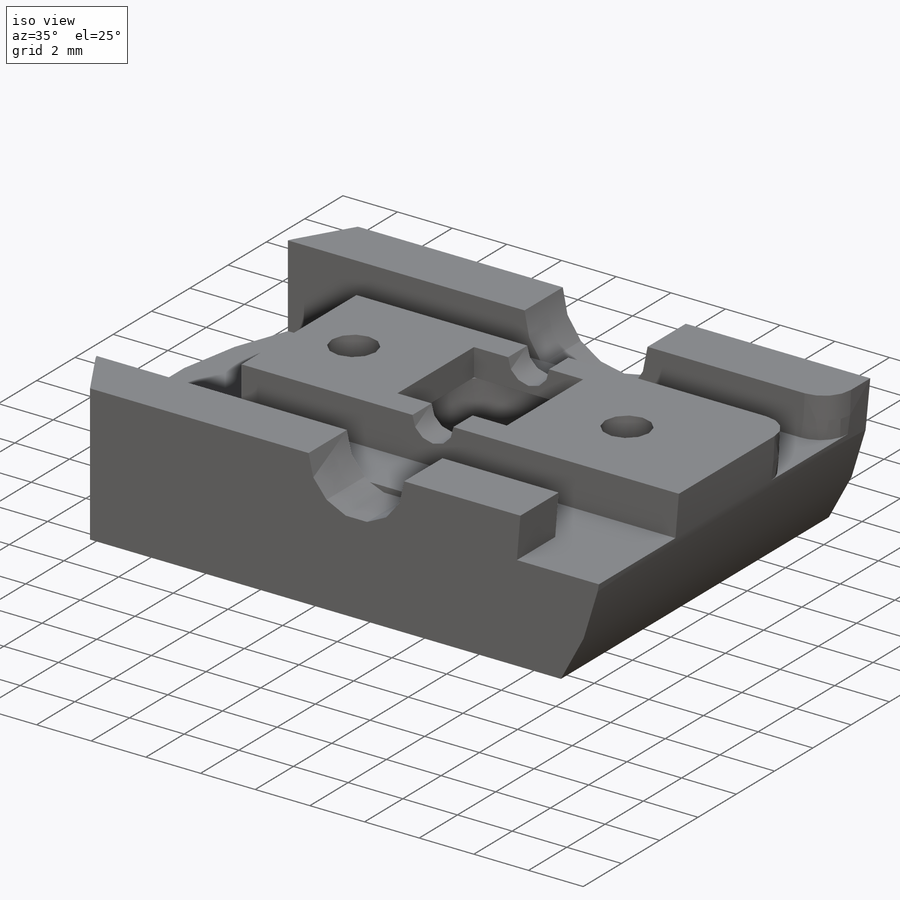
[diagram: iso view]
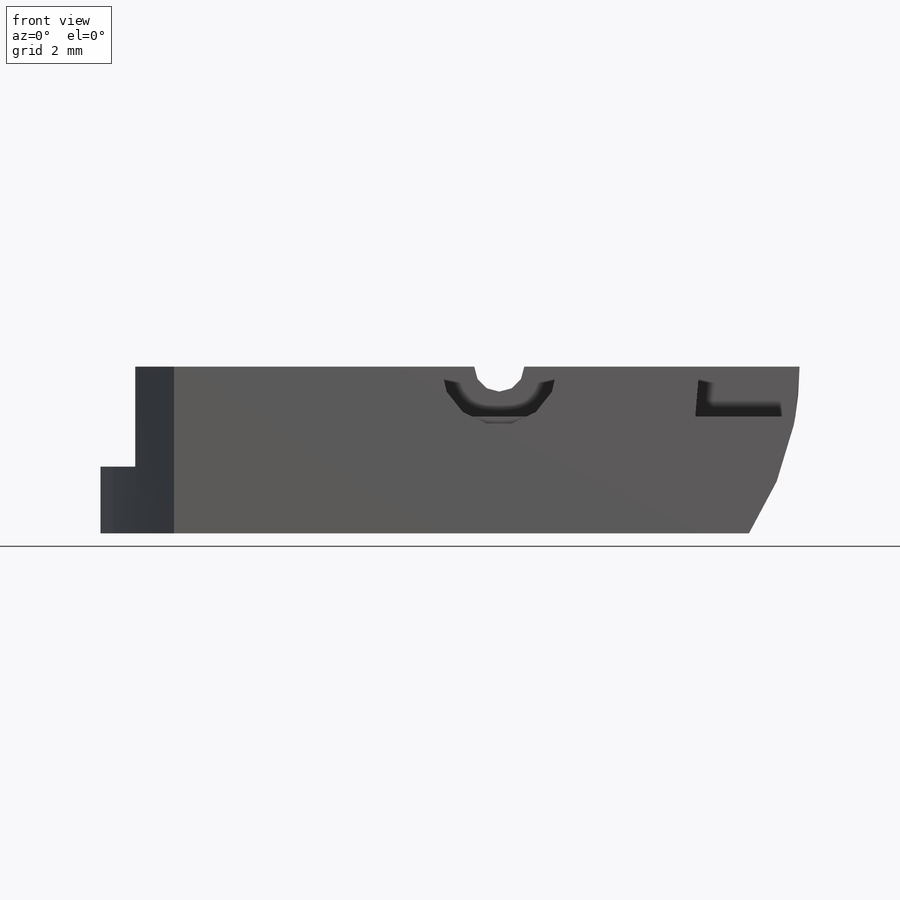
[diagram: front view]
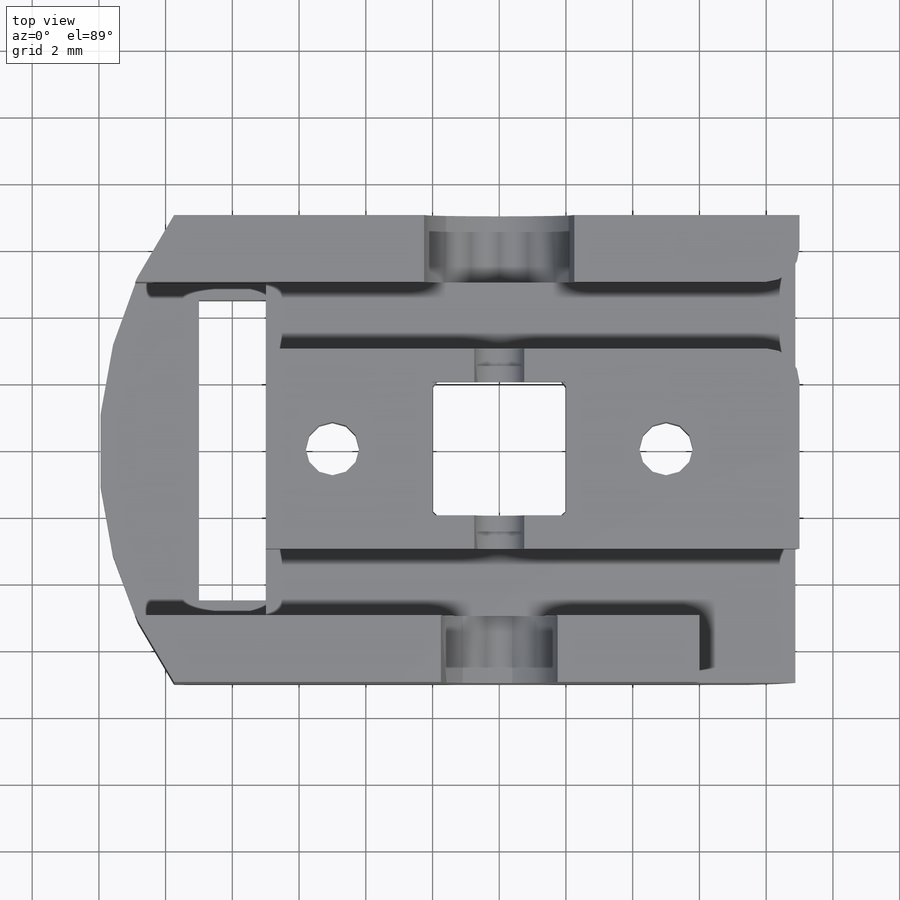
[diagram: top view]
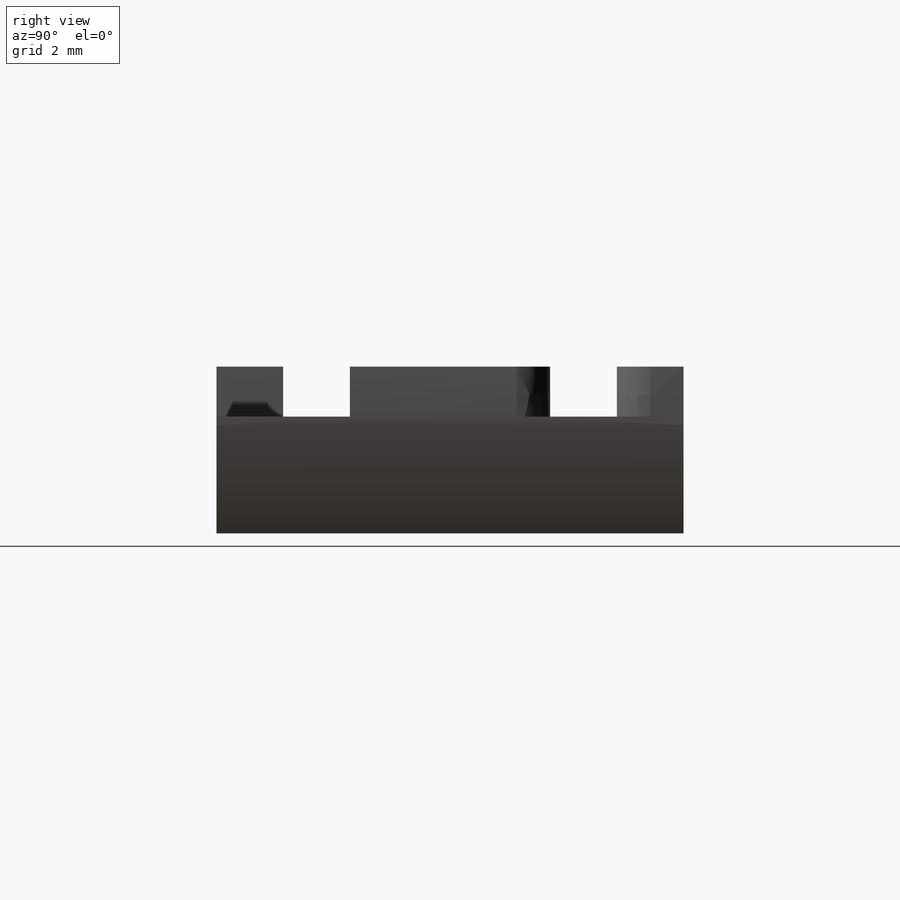
[diagram: right view]
SOLIDWORKS PART (.sldprt)
format: sldprt  version: not decoded by parser v0  size: 419,840 bytes
history: native  units: mm
features: sketch x16, cut_extrude x15, fillet x2, material x1, extrude x1 (+16 scaffold rows collapsed; 3 parser-record rows omitted)
feature tree (54):
  scaffold x16  (default folders/planes/origin — collapsed)
  material  "Material <not specified>"
  parser-record x3  (decoder bookkeeping rows leaked as tree rows — omitted from the tree; the rows remain in map.json)
  sketch  "Sketch1"  dims[c1.D1=22.0mm c1.D2=22.0mm c2.D1=7.0mm]
  extrude  "Boss-Extrude1"  Depth=10mm
  sketch  "Sketch4"  dims[D1=~2.289557mm]
  cut_extrude  "Cut-Extrude3"  [1 undecoded]
  sketch  "Sketch7"  dims[D1=3.5mm]
  cut_extrude  "Cut-Extrude6"  Depth=2mm
  sketch  "Sketch21"  dims[D1=3.5mm]
  cut_extrude  "Cut-Extrude14"  Depth=2mm
  sketch  "Sketch8"  dims[D1=~4.190547mm]
  cut_extrude  "Cut-Extrude7"  Depth=2mm
  sketch  "Sketch10"  dims[D1=2.75mm]
  cut_extrude  "Cut-Extrude8"  Depth=3mm
  sketch  "Sketch11"  dims[D1=2.0mm]
  cut_extrude  "Cut-Extrude9"  Depth=5mm
  sketch  "Sketch18"  dims[D1=5.0mm]
  cut_extrude  "Cut-Extrude12"  [1 undecoded]
  sketch  "Sketch19"  dims[D1=4.0mm]
  cut_extrude  "Cut-Extrude13"  Depth=2mm
  sketch  "Sketch5"  dims[D1=~2.408896mm]
  cut_extrude  "Cut-Extrude15"  Depth=2mm
  sketch  "Sketch26"  dims[D1=3.0mm]
  cut_extrude  "Cut-Extrude16"  Depth=2mm
  fillet  "Fillet2"  Radius=0.5mm
  fillet  "Fillet3"  Radius=1mm
  sketch  "Sketch3"  dims[D1=4.75mm]
  cut_extrude  "Pot Insert"  Depth=2.5mm
  sketch  "Sketch6"  dims[D1=~4.326625mm]
  cut_extrude  "Pot Hole"  Depth=1.5mm
  sketch  "Sketch14"  dims[D1=5.0mm]
  cut_extrude  "Screw Holes"  Depth=9mm
  sketch  "Sketch15"  dims[D1=2.5mm]
  cut_extrude  "Screw Heads"  Depth=2mm
  sketch  "Sketch13"  dims[D1=16.0mm D2=21.0mm]
  cut_extrude  "Cut-Extrude11"  Depth=5mm
decode coverage: 32 of 34 modeling features carry decoded parameters
note: ~ marks probable driven/reference dimensions
note: 2 parameter values undecoded
note: suppression state not decoded; provenance and decode notes live in map.json
